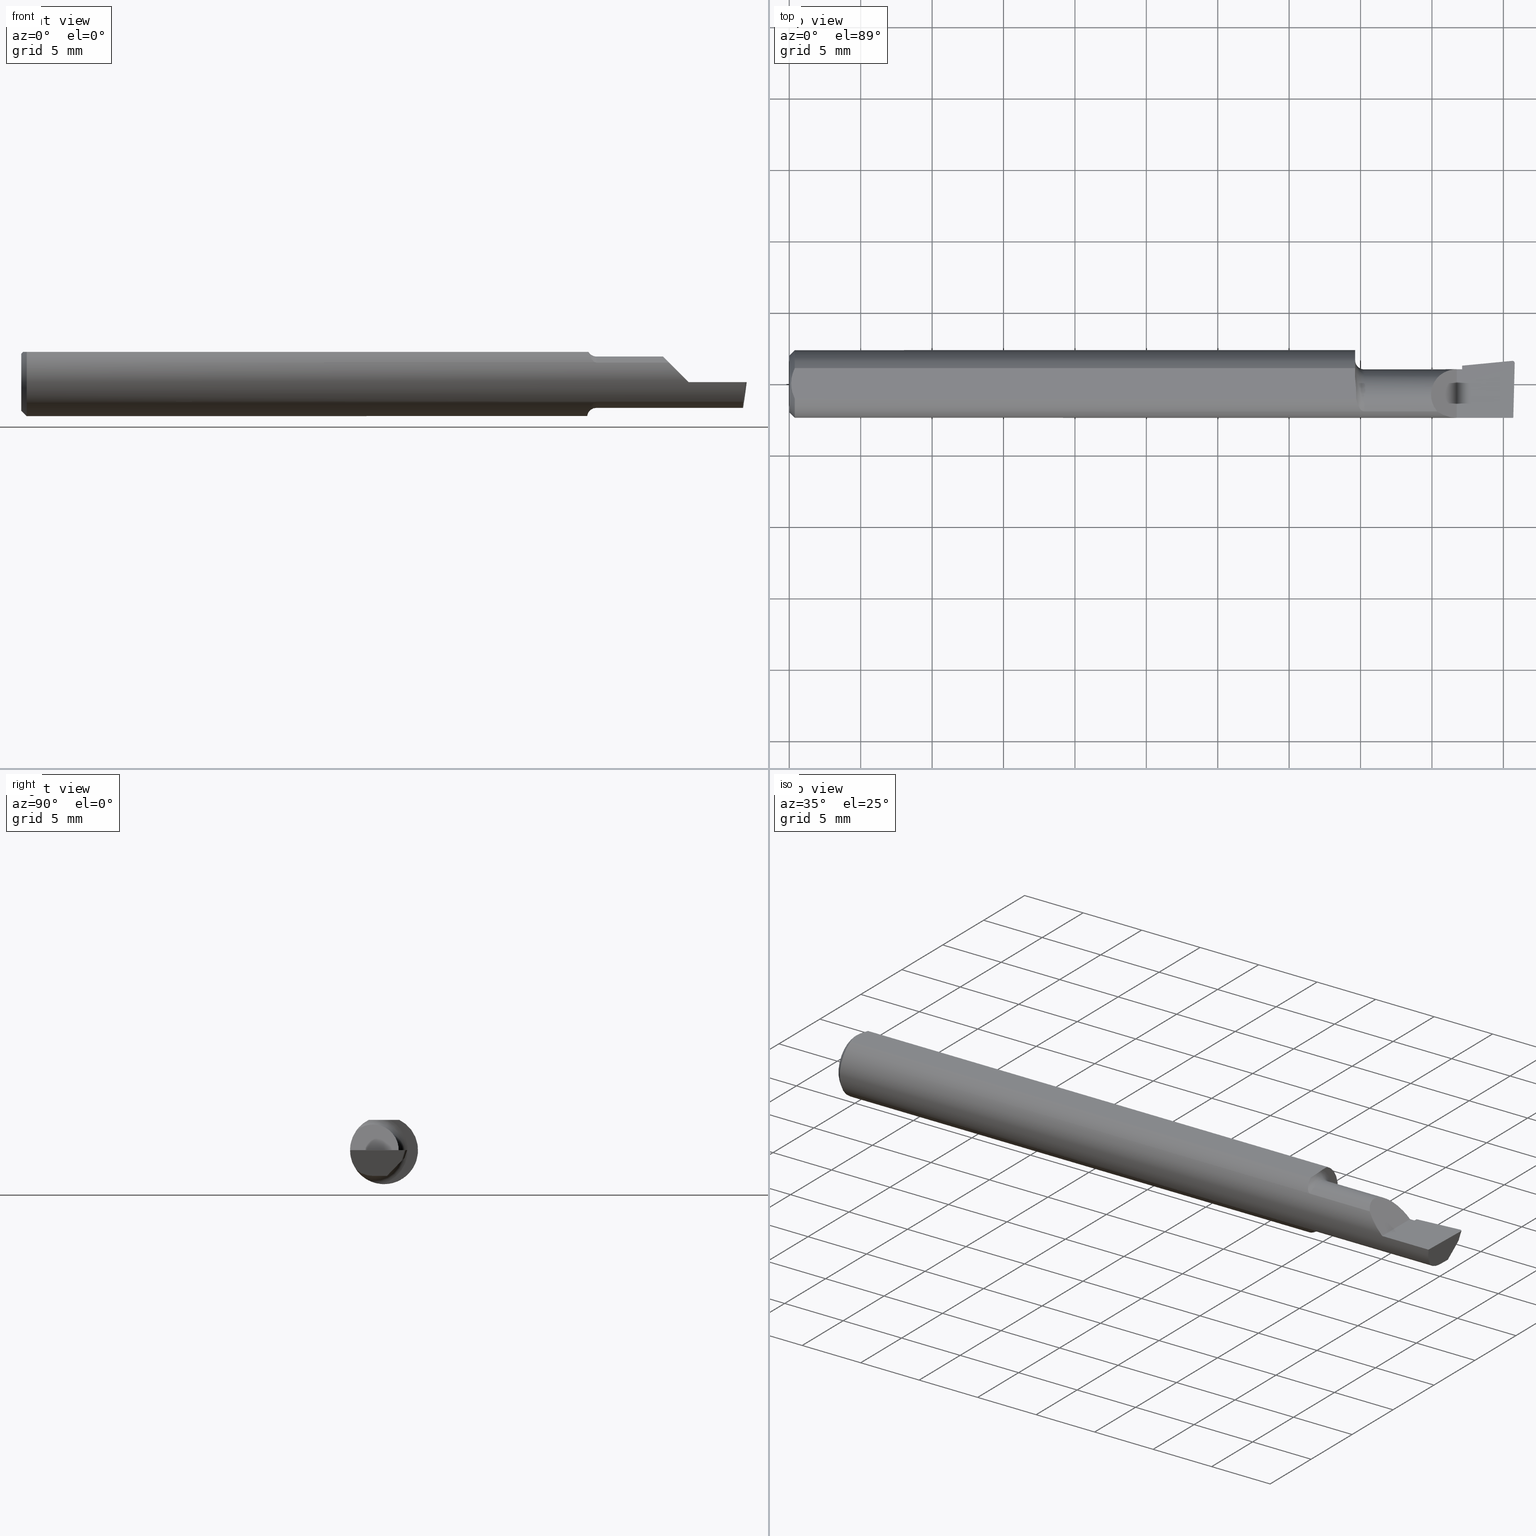
[diagram: canonical four-view strip — front | top / right | iso, engineering-drawing reading convention]
A machine part, canonical four-view strip (front | top / right | iso — engineering-drawing reading convention). The complete STEP part file that produces these views, byte-faithful:
ISO-10303-21;
HEADER;
FILE_DESCRIPTION (( 'STEP AP214' ),
    '1' );
FILE_NAME ('B160400R.STEP',
    '2020-05-08T22:44:17',
    ( '' ),
    ( '' ),
    'SwSTEP 2.0',
    'SolidWorks 2018',
    '' );
FILE_SCHEMA (( 'AUTOMOTIVE_DESIGN' ));
ENDSEC;

DATA;
#1 = DIRECTION ( 'NONE',  ( -4.268512490100411279E-18, 1.000000000000000000, 0.0000000000000000000 ) ) ;
#2 = CARTESIAN_POINT ( 'NONE',  ( 1.559999999999999831, -0.03049999999999999586, 0.0000000000000000000 ) ) ;
#3 =( GEOMETRIC_REPRESENTATION_CONTEXT ( 3 ) GLOBAL_UNCERTAINTY_ASSIGNED_CONTEXT ( ( #28 ) ) GLOBAL_UNIT_ASSIGNED_CONTEXT ( ( #263, #367, #441 ) ) REPRESENTATION_CONTEXT ( 'NONE', 'WORKASPACE' ) );
#4 = CARTESIAN_POINT ( 'NONE',  ( 1.993512870449312580, 0.06374616680637201771, -8.537024980200822558E-17 ) ) ;
#5 = ORIENTED_EDGE ( 'NONE', *, *, #438, .T. ) ;
#6 = CARTESIAN_POINT ( 'NONE',  ( 1.854999999999999982, -0.03049999999999999586, 0.0000000000000000000 ) ) ;
#7 = ORIENTED_EDGE ( 'NONE', *, *, #620, .T. ) ;
#8 = CARTESIAN_POINT ( 'NONE',  ( 1.990282674007078922, 0.05732143363315345130, -0.01999999999999999695 ) ) ;
#9 = EDGE_CURVE ( 'NONE', #21, #139, #243, .T. ) ;
#10 = CARTESIAN_POINT ( 'NONE',  ( 1.991772787678610435, -0.2497845628634191573, -6.377686106282116365E-17 ) ) ;
#11 = DIRECTION ( 'NONE',  ( 0.0000000000000000000, 0.0000000000000000000, -1.000000000000000000 ) ) ;
#12 = VERTEX_POINT ( 'NONE', #555 ) ;
#13 = LINE ( 'NONE', #404, #408 ) ;
#14 = DIRECTION ( 'NONE',  ( 0.0000000000000000000, -0.6963153109074925462, -0.7177360153954946975 ) ) ;
#15 = ORIENTED_EDGE ( 'NONE', *, *, #602, .T. ) ;
#16 = CARTESIAN_POINT ( 'NONE',  ( 1.854999999999999982, 0.05043808801135670622, 0.0000000000000000000 ) ) ;
#17 = ORIENTED_EDGE ( 'NONE', *, *, #451, .T. ) ;
#18 = PLANE ( 'NONE',  #148 ) ;
#19 = AXIS2_PLACEMENT_3D ( 'NONE', #16, #59, #600 ) ;
#20 = VECTOR ( 'NONE', #141, 39.37007874015748854 ) ;
#21 = VERTEX_POINT ( 'NONE', #395 ) ;
#22 =( GEOMETRIC_REPRESENTATION_CONTEXT ( 3 ) GLOBAL_UNCERTAINTY_ASSIGNED_CONTEXT ( ( #567 ) ) GLOBAL_UNIT_ASSIGNED_CONTEXT ( ( #307, #279, #627 ) ) REPRESENTATION_CONTEXT ( 'NONE', 'WORKASPACE' ) );
#23 = CARTESIAN_POINT ( 'NONE',  ( 1.988806546520622609, -0.03049999999999999586, -0.07090000000000000469 ) ) ;
#24 = VERTEX_POINT ( 'NONE', #108 ) ;
#25 = CARTESIAN_POINT ( 'NONE',  ( 1.572379481194433160, -0.06851133057105314450, -0.06386523205972809147 ) ) ;
#26 = DIRECTION ( 'NONE',  ( 0.0000000000000000000, 0.0000000000000000000, 1.000000000000000000 ) ) ;
#27 = CARTESIAN_POINT ( 'NONE',  ( 1.584999999999999964, -0.07646557377049212345, 0.05398125626501703439 ) ) ;
#28 = UNCERTAINTY_MEASURE_WITH_UNIT (LENGTH_MEASURE( 1.000000000000000082E-05 ), #263, 'distance_accuracy_value', 'NONE');
#29 = ORIENTED_EDGE ( 'NONE', *, *, #51, .F. ) ;
#30 = CARTESIAN_POINT ( 'NONE',  ( 1.993512870449312580, 0.06374616680637201771, -8.537024980200822558E-17 ) ) ;
#31 = DIRECTION ( 'NONE',  ( -1.000000000000000000, -0.0000000000000000000, -0.0000000000000000000 ) ) ;
#32 = CIRCLE ( 'NONE', #240, 0.07089999999999997693 ) ;
#33 = CARTESIAN_POINT ( 'NONE',  ( 1.993512870449312580, 0.06374616680637201771, -8.537024980200822558E-17 ) ) ;
#34 = ORIENTED_EDGE ( 'NONE', *, *, #51, .T. ) ;
#35 = CARTESIAN_POINT ( 'NONE',  ( 0.005000000000000223883, 0.007308422719211823959, 0.08360000000000000764 ) ) ;
#36 = CARTESIAN_POINT ( 'NONE',  ( 1.854999999999999982, 0.02466814268713802757, -0.04023083677511909290 ) ) ;
#37 = CARTESIAN_POINT ( 'NONE',  ( 1.577475890146723403, -0.07388913376859282400, 0.05747801488572825551 ) ) ;
#38 = AXIS2_PLACEMENT_3D ( 'NONE', #537, #522, #525 ) ;
#39 = EDGE_CURVE ( 'NONE', #270, #443, #99, .T. ) ;
#40 = VERTEX_POINT ( 'NONE', #129 ) ;
#41 = FACE_OUTER_BOUND ( 'NONE', #607, .T. ) ;
#42 = DIRECTION ( 'NONE',  ( 0.1219104985252570661, 0.0000000000000000000, 0.9925410975618708109 ) ) ;
#43 = ORIENTED_EDGE ( 'NONE', *, *, #260, .T. ) ;
#44 = CARTESIAN_POINT ( 'NONE',  ( 1.559999999999993392, -0.01550498344099977138, -0.09260523827686174825 ) ) ;
#45 = ORIENTED_EDGE ( 'NONE', *, *, #451, .F. ) ;
#46 = CARTESIAN_POINT ( 'NONE',  ( 1.988806546520622609, -0.03049999999999999586, -0.07090000000000000469 ) ) ;
#47 = AXIS2_PLACEMENT_3D ( 'NONE', #450, #187, #179 ) ;
#48 = CARTESIAN_POINT ( 'NONE',  ( 1.769987205483423143, 0.04039999999999997066, 0.07001279451657603514 ) ) ;
#49 = EDGE_LOOP ( 'NONE', ( #446, #45, #364, #552, #164, #447 ) ) ;
#50 = EDGE_LOOP ( 'NONE', ( #597, #629, #497, #440, #604, #136 ) ) ;
#51 = EDGE_CURVE ( 'NONE', #611, #333, #162, .T. ) ;
#52 = DIRECTION ( 'NONE',  ( -0.9922060308645512805, 0.02598182930468072652, 0.1218693434051217050 ) ) ;
#53 = CARTESIAN_POINT ( 'NONE',  ( 1.568064680686318324, -0.06127374973417914344, -0.07108395546218125582 ) ) ;
#54 = CARTESIAN_POINT ( 'NONE',  ( 1.989680968235101988, -0.07646557377049188753, -0.05398125626501726337 ) ) ;
#55 = ORIENTED_EDGE ( 'NONE', *, *, #561, .F. ) ;
#56 = DIRECTION ( 'NONE',  ( -1.000000000000000000, -0.0000000000000000000, -0.0000000000000000000 ) ) ;
#57 = VECTOR ( 'NONE', #668, 39.37007874015748143 ) ;
#58 = EDGE_CURVE ( 'NONE', #531, #482, #636, .T. ) ;
#59 = DIRECTION ( 'NONE',  ( -1.000000000000000000, -4.268512490100411279E-18, 0.0000000000000000000 ) ) ;
#60 = ORIENTED_EDGE ( 'NONE', *, *, #58, .T. ) ;
#61 = CARTESIAN_POINT ( 'NONE',  ( 1.992906680581891354, 0.06371699102466910070, -6.439972649628823803E-17 ) ) ;
#62 = PRESENTATION_STYLE_ASSIGNMENT (( #498 ) ) ;
#63 = PLANE ( 'NONE',  #295 ) ;
#64 = PRESENTATION_LAYER_ASSIGNMENT (  '', '', ( #168 ) ) ;
#65 = LENGTH_MEASURE_WITH_UNIT ( LENGTH_MEASURE( 0.02539999999999999897 ), #378 );
#66 = VERTEX_POINT ( 'NONE', #613 ) ;
#67 = CARTESIAN_POINT ( 'NONE',  ( 0.0000000000000000000, 0.0000000000000000000, 0.0000000000000000000 ) ) ;
#68 = CARTESIAN_POINT ( 'NONE',  ( 1.574015914171515096, -0.07074360550885062937, -0.06136535069389129071 ) ) ;
#69 = PRODUCT ( 'B160400R', 'B160400R', '', ( #114 ) ) ;
#70 = AXIS2_PLACEMENT_3D ( 'NONE', #641, #566, #323 ) ;
#71 = FACE_OUTER_BOUND ( 'NONE', #50, .T. ) ;
#72 = CARTESIAN_POINT ( 'NONE',  ( 1.854999999999999982, -0.03049999999999999586, 0.0000000000000000000 ) ) ;
#73 = COLOUR_RGB ( '',0.7529411764705882248, 0.7529411764705882248, 0.7529411764705882248 ) ;
#74 = ORIENTED_EDGE ( 'NONE', *, *, #200, .T. ) ;
#75 = DIRECTION ( 'NONE',  ( -1.000000000000000000, -4.268512490100411279E-18, 0.0000000000000000000 ) ) ;
#76 = FILL_AREA_STYLE ('',( #166 ) ) ;
#77 = DIRECTION ( 'NONE',  ( 0.0000000000000000000, 0.0000000000000000000, -1.000000000000000000 ) ) ;
#78 = AXIS2_PLACEMENT_3D ( 'NONE', #211, #476, #1 ) ;
#79 = LINE ( 'NONE', #363, #562 ) ;
#80 = LENGTH_MEASURE_WITH_UNIT ( LENGTH_MEASURE( 0.02539999999999999897 ), #659 );
#81 = VECTOR ( 'NONE', #504, 39.37007874015748854 ) ;
#82 = CARTESIAN_POINT ( 'NONE',  ( 1.564271705382763500, -0.04994636227297237496, 0.07964666709476365958 ) ) ;
#83 = CARTESIAN_POINT ( 'NONE',  ( 1.786018743734982150, -0.07646557377049197080, 0.05398125626501716623 ) ) ;
#84 = ORIENTED_EDGE ( 'NONE', *, *, #311, .T. ) ;
#85 = CARTESIAN_POINT ( 'NONE',  ( 0.01499999999999999598, 0.0000000000000000000, -0.09360000000000001652 ) ) ;
#86 = CARTESIAN_POINT ( 'NONE',  ( 1.559999999999999831, 0.006771783253975776143, 0.08360000000000003539 ) ) ;
#87 = MECHANICAL_DESIGN_GEOMETRIC_PRESENTATION_REPRESENTATION (  '', ( #168 ), #22 ) ;
#88 = CARTESIAN_POINT ( 'NONE',  ( 1.786018743734982150, -0.07646557377049197080, 0.05398125626501716623 ) ) ;
#89 = DIRECTION ( 'NONE',  ( -1.000000000000000000, -4.268512490100411279E-18, -0.0000000000000000000 ) ) ;
#90 = CARTESIAN_POINT ( 'NONE',  ( 1.801938678439108932, -0.08770433171880964718, 0.03806132156089073182 ) ) ;
#91 = EDGE_LOOP ( 'NONE', ( #213, #520, #92, #301 ) ) ;
#92 = ORIENTED_EDGE ( 'NONE', *, *, #200, .F. ) ;
#93 = CARTESIAN_POINT ( 'NONE',  ( 1.854999999999999982, -0.03049999999999999586, -0.07090000000000000469 ) ) ;
#94 = AXIS2_PLACEMENT_3D ( 'NONE', #2, #352, #268 ) ;
#95 = EDGE_CURVE ( 'NONE', #482, #639, #236, .T. ) ;
#96 = SURFACE_SIDE_STYLE ('',( #640 ) ) ;
#97 = FACE_OUTER_BOUND ( 'NONE', #469, .T. ) ;
#98 = EDGE_CURVE ( 'NONE', #139, #21, #508, .T. ) ;
#99 =( BOUNDED_CURVE ( )  B_SPLINE_CURVE ( 3, ( #4, #288, #647, #294 ),
 .UNSPECIFIED., .F., .F. ) 
 B_SPLINE_CURVE_WITH_KNOTS ( ( 4, 4 ),
 ( 3.511516179717668606, 3.604018710826184524 ),
 .UNSPECIFIED. ) 
 CURVE ( )  GEOMETRIC_REPRESENTATION_ITEM ( )  RATIONAL_B_SPLINE_CURVE ( ( 1.000000000000000000, 0.9992870672494020834, 0.9992870672494020834, 1.000000000000000000 ) ) 
 REPRESENTATION_ITEM ( '' )  );
#100 = DIRECTION ( 'NONE',  ( 2.972230601656782806E-18, -0.6963153109074925462, -0.7177360153954946975 ) ) ;
#101 = DIRECTION ( 'NONE',  ( -1.000000000000000000, -0.0000000000000000000, -0.0000000000000000000 ) ) ;
#102 = ORIENTED_EDGE ( 'NONE', *, *, #660, .T. ) ;
#103 = VERTEX_POINT ( 'NONE', #420 ) ;
#104 = CIRCLE ( 'NONE', #94, 0.09589999999999999913 ) ;
#105 = CIRCLE ( 'NONE', #473, 0.09360000000000001652 ) ;
#106 = VECTOR ( 'NONE', #579, 39.37007874015748143 ) ;
#107 = EDGE_CURVE ( 'NONE', #435, #40, #649, .T. ) ;
#108 = CARTESIAN_POINT ( 'NONE',  ( 1.854999999999999982, -0.03049999999999999586, -0.07090000000000000469 ) ) ;
#109 = DIRECTION ( 'NONE',  ( 0.0000000000000000000, -1.000000000000000000, 0.0000000000000000000 ) ) ;
#110 = CARTESIAN_POINT ( 'NONE',  ( 0.009492654797564337166, 0.02859466010166625619, 0.08359999999999997988 ) ) ;
#111 = LINE ( 'NONE', #486, #340 ) ;
#112 = CARTESIAN_POINT ( 'NONE',  ( 1.982891729545288362, 0.03166783622807470971, -0.07897382033917342559 ) ) ;
#113 = PLANE ( 'NONE',  #400 ) ;
#114 = PRODUCT_CONTEXT ( 'NONE', #656, 'mechanical' ) ;
#115 =( BOUNDED_CURVE ( )  B_SPLINE_CURVE ( 3, ( #123, #456, #313, #33 ),
 .UNSPECIFIED., .F., .F. ) 
 B_SPLINE_CURVE_WITH_KNOTS ( ( 4, 4 ),
 ( 1.953092279228392680, 3.511516179717668606 ),
 .UNSPECIFIED. ) 
 CURVE ( )  GEOMETRIC_REPRESENTATION_ITEM ( )  RATIONAL_B_SPLINE_CURVE ( ( 1.000000000000000000, 0.8076450242550367031, 0.8076450242550367031, 1.000000000000000000 ) ) 
 REPRESENTATION_ITEM ( '' )  );
#116 = ORIENTED_EDGE ( 'NONE', *, *, #326, .T. ) ;
#117 = CARTESIAN_POINT ( 'NONE',  ( 1.987153287650115008, -0.009717623157789102850, -0.08879077981908641004 ) ) ;
#118 = DIRECTION ( 'NONE',  ( -0.0000000000000000000, 0.0000000000000000000, 1.000000000000000000 ) ) ;
#119 = CYLINDRICAL_SURFACE ( 'NONE', #198, 0.006500000000000000569 ) ;
#120 = VECTOR ( 'NONE', #401, 39.37007874015748854 ) ;
#121 = VERTEX_POINT ( 'NONE', #83 ) ;
#122 = CARTESIAN_POINT ( 'NONE',  ( 1.990484603334409242, 0.05734087721588529418, -0.01999999999999994491 ) ) ;
#123 = CARTESIAN_POINT ( 'NONE',  ( 1.999806390372778075, 0.05700634663142072761, -6.825504076481286703E-17 ) ) ;
#124 = DIRECTION ( 'NONE',  ( -1.000000000000000000, 0.0000000000000000000, 5.493159289247764363E-16 ) ) ;
#125 = FILL_AREA_STYLE ('',( #135 ) ) ;
#126 = LINE ( 'NONE', #117, #20 ) ;
#127 = CARTESIAN_POINT ( 'NONE',  ( 5.659797890829555466E-31, -0.09359999999999998876, 1.030335658007946046E-15 ) ) ;
#128 = VECTOR ( 'NONE', #321, 39.37007874015748854 ) ;
#129 = CARTESIAN_POINT ( 'NONE',  ( 1.854999999999999982, 0.04040000000000000535, 1.030335658007946440E-15 ) ) ;
#130 = ORIENTED_EDGE ( 'NONE', *, *, #532, .F. ) ;
#131 = AXIS2_PLACEMENT_3D ( 'NONE', #144, #101, #197 ) ;
#132 = CARTESIAN_POINT ( 'NONE',  ( 1.990883086864198681, 0.05733652896197527493, -0.02004403198038578332 ) ) ;
#133 = CARTESIAN_POINT ( 'NONE',  ( 1.982891729545288362, 0.03785899225921191685, -0.08095361502502176898 ) ) ;
#134 = CARTESIAN_POINT ( 'NONE',  ( 1.576159648777483158, -0.07275446879445285342, 0.05891786234966334829 ) ) ;
#135 = FILL_AREA_STYLE_COLOUR ( '', #73 ) ;
#136 = ORIENTED_EDGE ( 'NONE', *, *, #421, .F. ) ;
#137 = CARTESIAN_POINT ( 'NONE',  ( 0.01499999999999999598, 0.0000000000000000000, 0.0000000000000000000 ) ) ;
#138 = CONICAL_SURFACE ( 'NONE', #142, 0.09360000000000001652, 0.7853981633974601584 ) ;
#139 = VERTEX_POINT ( 'NONE', #570 ) ;
#140 = DIRECTION ( 'NONE',  ( 0.0000000000000000000, -1.189000693621284344E-16, -1.000000000000000000 ) ) ;
#141 = DIRECTION ( 'NONE',  ( -0.1053106618241542169, -0.6976485211320176960, -0.7086580314005247461 ) ) ;
#142 = AXIS2_PLACEMENT_3D ( 'NONE', #478, #623, #77 ) ;
#143 = APPLICATION_PROTOCOL_DEFINITION ( 'draft international standard', 'automotive_design', 1998, #656 ) ;
#144 = CARTESIAN_POINT ( 'NONE',  ( 0.0000000000000000000, 0.0000000000000000000, 0.0000000000000000000 ) ) ;
#145 = CARTESIAN_POINT ( 'NONE',  ( 1.434596552969581884, 0.003814945941878333715, -0.01999999999999999695 ) ) ;
#146 = ORIENTED_EDGE ( 'NONE', *, *, #385, .T. ) ;
#147 =( BOUNDED_CURVE ( )  B_SPLINE_CURVE ( 3, ( #244, #544, #48, #216 ),
 .UNSPECIFIED., .F., .T. ) 
 B_SPLINE_CURVE_WITH_KNOTS ( ( 4, 4 ),
 ( 5.577815324852163137, 7.853981633974482790 ),
 .UNSPECIFIED. ) 
 CURVE ( )  GEOMETRIC_REPRESENTATION_ITEM ( )  RATIONAL_B_SPLINE_CURVE ( ( 1.000000000000000000, 0.6128902971210721251, 0.6128902971210721251, 1.000000000000000000 ) ) 
 REPRESENTATION_ITEM ( '' )  );
#148 = AXIS2_PLACEMENT_3D ( 'NONE', #375, #464, #635 ) ;
#149 = ORIENTED_EDGE ( 'NONE', *, *, #9, .F. ) ;
#150 = CARTESIAN_POINT ( 'NONE',  ( -3.026375355475530641E-19, 0.04039999999999996372, 1.030335658007946046E-15 ) ) ;
#151 = DIRECTION ( 'NONE',  ( 1.000000000000000000, 4.268512490100411279E-18, 0.0000000000000000000 ) ) ;
#152 = ORIENTED_EDGE ( 'NONE', *, *, #345, .F. ) ;
#153 = CARTESIAN_POINT ( 'NONE',  ( 1.563100172961548795, -0.02248939038937002033, 0.08360000000000000764 ) ) ;
#154 = EDGE_CURVE ( 'NONE', #177, #121, #374, .T. ) ;
#155 = ORIENTED_EDGE ( 'NONE', *, *, #573, .F. ) ;
#156 = VERTEX_POINT ( 'NONE', #46 ) ;
#157 = CARTESIAN_POINT ( 'NONE',  ( 1.820512722067858524, -0.09360000000000001652, 0.01948727793214129894 ) ) ;
#158 = CARTESIAN_POINT ( 'NONE',  ( 1.840000000000000080, -0.09360000000000005815, 1.959434878635762025E-17 ) ) ;
#159 = ORIENTED_EDGE ( 'NONE', *, *, #513, .F. ) ;
#160 = DIRECTION ( 'NONE',  ( 1.000000000000000000, 4.268512490100411279E-18, 0.0000000000000000000 ) ) ;
#161 = CARTESIAN_POINT ( 'NONE',  ( 1.989811960493453435, 0.007895210578134201698, -0.07090000000000000469 ) ) ;
#162 = LINE ( 'NONE', #231, #373 ) ;
#163 = AXIS2_PLACEMENT_3D ( 'NONE', #325, #302, #533 ) ;
#164 = ORIENTED_EDGE ( 'NONE', *, *, #418, .F. ) ;
#165 = EDGE_CURVE ( 'NONE', #66, #485, #126, .T. ) ;
#166 = FILL_AREA_STYLE_COLOUR ( '', #315 ) ;
#167 = VERTEX_POINT ( 'NONE', #278 ) ;
#168 = STYLED_ITEM ( 'NONE', ( #554 ), #258 ) ;
#169 = CARTESIAN_POINT ( 'NONE',  ( 1.584999999999999964, -0.07646557377049212345, 0.05398125626501703439 ) ) ;
#170 = CARTESIAN_POINT ( 'NONE',  ( 2.000000000000000000, -0.03049999999999999586, -0.07090000000000000469 ) ) ;
#171 = ORIENTED_EDGE ( 'NONE', *, *, #430, .T. ) ;
#172 = VECTOR ( 'NONE', #100, 39.37007874015748854 ) ;
#173 = CARTESIAN_POINT ( 'NONE',  ( 0.0000000000000000000, 0.0000000000000000000, 0.0000000000000000000 ) ) ;
#174 = DIRECTION ( 'NONE',  ( 0.06894566448119622548, -0.7160281025913034503, 0.6946583704589934793 ) ) ;
#175 = EDGE_CURVE ( 'NONE', #270, #496, #444, .T. ) ;
#176 = DIRECTION ( 'NONE',  ( 0.0000000000000000000, 0.9524855432518779530, -0.3045837978228238541 ) ) ;
#177 = VERTEX_POINT ( 'NONE', #591 ) ;
#178 = VECTOR ( 'NONE', #568, 39.37007874015748854 ) ;
#179 = DIRECTION ( 'NONE',  ( 0.0000000000000000000, -1.000000000000000000, 0.0000000000000000000 ) ) ;
#180 =( NAMED_UNIT ( * ) PLANE_ANGLE_UNIT ( ) SI_UNIT ( $, .RADIAN. ) );
#181 = AXIS2_PLACEMENT_3D ( 'NONE', #232, #140, #234 ) ;
#182 = CARTESIAN_POINT ( 'NONE',  ( 1.854999999999999982, 0.04694360585384964313, -0.01137731495658560361 ) ) ;
#183 = CIRCLE ( 'NONE', #47, 0.07089999999999996305 ) ;
#184 = VECTOR ( 'NONE', #160, 39.37007874015748143 ) ;
#185 = AXIS2_PLACEMENT_3D ( 'NONE', #246, #546, #558 ) ;
#186 = CARTESIAN_POINT ( 'NONE',  ( 1.562745430550909864, -0.01759363372028110648, 0.08360000000000003539 ) ) ;
#187 = DIRECTION ( 'NONE',  ( -1.000000000000000000, -4.268512490100411279E-18, -0.0000000000000000000 ) ) ;
#188 = ORIENTED_EDGE ( 'NONE', *, *, #505, .T. ) ;
#189 = CARTESIAN_POINT ( 'NONE',  ( 0.01499999999999999944, -0.04209513035969835587, 0.08360000000000000764 ) ) ;
#190 = VERTEX_POINT ( 'NONE', #189 ) ;
#191 = CARTESIAN_POINT ( 'NONE',  ( 0.0000000000000000000, -0.03050000000000000627, 0.0000000000000000000 ) ) ;
#192 = ORIENTED_EDGE ( 'NONE', *, *, #369, .T. ) ;
#193 = PLANE ( 'NONE',  #252 ) ;
#194 = EDGE_CURVE ( 'NONE', #167, #443, #515, .T. ) ;
#195 = FACE_OUTER_BOUND ( 'NONE', #499, .T. ) ;
#196 = CARTESIAN_POINT ( 'NONE',  ( 1.996607907276938487, 0.05291612433050036507, -0.02516861643763559919 ) ) ;
#197 = DIRECTION ( 'NONE',  ( 0.0000000000000000000, 0.0000000000000000000, 1.000000000000000000 ) ) ;
#198 = AXIS2_PLACEMENT_3D ( 'NONE', #112, #355, #176 ) ;
#199 = LINE ( 'NONE', #145, #582 ) ;
#200 = EDGE_CURVE ( 'NONE', #611, #472, #199, .T. ) ;
#201 = ORIENTED_EDGE ( 'NONE', *, *, #214, .F. ) ;
#202 = B_SPLINE_CURVE_WITH_KNOTS ( 'NONE', 3,
 ( #273, #417, #310, #534, #461, #68, #25, #53, #257, #290, #564, #439, #44, #616 ),
 .UNSPECIFIED., .F., .F.,
 ( 4, 2, 2, 2, 2, 2, 4 ),
 ( 1.959158530842610525E-07, 0.0001424059935984809603, 0.0002846160713438776512, 0.0005690362268346715749, 0.001137876537816250857, 0.001706716848797830031, 0.002275557159779408988 ),
 .UNSPECIFIED. ) ;
#203 = DIRECTION ( 'NONE',  ( 0.9953961983671800740, 0.09584575252021028391, 0.0000000000000000000 ) ) ;
#204 = ORIENTED_EDGE ( 'NONE', *, *, #98, .T. ) ;
#205 = CARTESIAN_POINT ( 'NONE',  ( 1.559999999999999831, 0.1436000000000000332, 0.08359999999999999376 ) ) ;
#206 = DIRECTION ( 'NONE',  ( 1.000000000000000000, 0.0000000000000000000, 0.0000000000000000000 ) ) ;
#207 = CARTESIAN_POINT ( 'NONE',  ( 0.01499999999999999598, 0.04209513035969837669, 0.08360000000000000764 ) ) ;
#208 = ORIENTED_EDGE ( 'NONE', *, *, #194, .F. ) ;
#209 = ORIENTED_EDGE ( 'NONE', *, *, #154, .T. ) ;
#210 = EDGE_LOOP ( 'NONE', ( #431, #116, #524, #209, #327, #201, #380, #429, #224, #595, #495, #410 ) ) ;
#211 = CARTESIAN_POINT ( 'NONE',  ( 1.559999999999999831, 0.06539999999999997204, 0.0000000000000000000 ) ) ;
#212 = DIRECTION ( 'NONE',  ( -1.000000000000000000, -4.268512490100411279E-18, 0.0000000000000000000 ) ) ;
#213 = ORIENTED_EDGE ( 'NONE', *, *, #194, .T. ) ;
#214 = EDGE_CURVE ( 'NONE', #365, #614, #625, .T. ) ;
#215 = CARTESIAN_POINT ( 'NONE',  ( 1.854999999999999982, 0.05043808801135670622, 0.0000000000000000000 ) ) ;
#216 = CARTESIAN_POINT ( 'NONE',  ( 1.840000000000000080, 0.04039999999999989433, 1.959434878635762025E-17 ) ) ;
#217 = LINE ( 'NONE', #433, #453 ) ;
#218 = CARTESIAN_POINT ( 'NONE',  ( 1.989680968235101988, -0.07646557377049188753, -0.05398125626501726337 ) ) ;
#219 = ORIENTED_EDGE ( 'NONE', *, *, #336, .T. ) ;
#220 = CARTESIAN_POINT ( 'NONE',  ( 1.559999999999999831, -0.008104918032786992757, -0.09324843325054746335 ) ) ;
#221 = CARTESIAN_POINT ( 'NONE',  ( 1.990282674007078922, 0.05732143363315345130, -0.01999999999999999695 ) ) ;
#222 = AXIS2_PLACEMENT_3D ( 'NONE', #259, #174, #14 ) ;
#223 = CARTESIAN_POINT ( 'NONE',  ( 1.563150981066091738, -0.03719006435924352566, 0.08360000000000000764 ) ) ;
#224 = ORIENTED_EDGE ( 'NONE', *, *, #95, .F. ) ;
#225 = LINE ( 'NONE', #170, #254 ) ;
#226 = LINE ( 'NONE', #391, #383 ) ;
#227 = CARTESIAN_POINT ( 'NONE',  ( 1.562801882726447822, -0.04209513036031865135, 0.08360000000000000764 ) ) ;
#228 = DIRECTION ( 'NONE',  ( 1.000000000000000000, 0.0000000000000000000, 0.0000000000000000000 ) ) ;
#229 = EDGE_CURVE ( 'NONE', #443, #472, #480, .T. ) ;
#230 = CARTESIAN_POINT ( 'NONE',  ( 1.989680968235101988, -0.07646557377049188753, -0.05398125626501726337 ) ) ;
#231 = CARTESIAN_POINT ( 'NONE',  ( 1.854999999999999982, 0.02466814268713802757, -0.04023083677511909290 ) ) ;
#232 = CARTESIAN_POINT ( 'NONE',  ( 2.000000000000000000, 0.1436000000000000332, 0.08359999999999999376 ) ) ;
#233 = DIRECTION ( 'NONE',  ( -4.268512490100411279E-18, 1.000000000000000000, 2.344761903626518103E-33 ) ) ;
#234 = DIRECTION ( 'NONE',  ( 0.0000000000000000000, 1.000000000000000000, -1.189000693621284344E-16 ) ) ;
#235 = PLANE ( 'NONE',  #78 ) ;
#236 = CIRCLE ( 'NONE', #646, 0.09360000000000001652 ) ;
#237 = LENGTH_MEASURE_WITH_UNIT ( LENGTH_MEASURE( 0.02539999999999999897 ), #399 );
#238 = VERTEX_POINT ( 'NONE', #658 ) ;
#239 = CARTESIAN_POINT ( 'NONE',  ( 1.561342386211016953, -0.002910845068973703063, 0.08359999999999999376 ) ) ;
#240 = AXIS2_PLACEMENT_3D ( 'NONE', #6, #299, #109 ) ;
#241 = EDGE_CURVE ( 'NONE', #177, #435, #650, .T. ) ;
#242 = CARTESIAN_POINT ( 'NONE',  ( 0.01499999999999999598, 0.0000000000000000000, 0.0000000000000000000 ) ) ;
#243 = CIRCLE ( 'NONE', #185, 0.07859999999999965625 ) ;
#244 = CARTESIAN_POINT ( 'NONE',  ( 1.786018743734982150, -0.07646557377049197080, 0.05398125626501716623 ) ) ;
#245 = ORIENTED_EDGE ( 'NONE', *, *, #336, .F. ) ;
#246 = CARTESIAN_POINT ( 'NONE',  ( 0.0000000000000000000, 0.0000000000000000000, 0.0000000000000000000 ) ) ;
#247 = CARTESIAN_POINT ( 'NONE',  ( 1.584999999999999964, -0.07646557377049209570, -0.05398125626501706908 ) ) ;
#248 = EDGE_CURVE ( 'NONE', #365, #190, #226, .T. ) ;
#249 = FACE_OUTER_BOUND ( 'NONE', #434, .T. ) ;
#250 = ORIENTED_EDGE ( 'NONE', *, *, #458, .T. ) ;
#251 = PLANE ( 'NONE',  #38 ) ;
#252 = AXIS2_PLACEMENT_3D ( 'NONE', #344, #52, #42 ) ;
#253 = CARTESIAN_POINT ( 'NONE',  ( 1.995862624392067852, -0.09360000000000009979, -6.605666309584449409E-17 ) ) ;
#254 = VECTOR ( 'NONE', #466, 39.37007874015748143 ) ;
#255 = CYLINDRICAL_SURFACE ( 'NONE', #163, 0.006500000000000000569 ) ;
#256 = DIRECTION ( 'NONE',  ( 0.0000000000000000000, 0.0000000000000000000, 1.000000000000000000 ) ) ;
#257 = CARTESIAN_POINT ( 'NONE',  ( 1.566019021117886378, -0.05561872204144574505, -0.07562530238090230117 ) ) ;
#258 = MANIFOLD_SOLID_BREP ( '0A7B9152-0A08-4aca-91C7-A423BCB6DE30-GAAFaceID16', #589 ) ;
#259 = CARTESIAN_POINT ( 'NONE',  ( 1.434596552969581884, 0.003814945941878333715, -0.01999999999999999695 ) ) ;
#260 = EDGE_CURVE ( 'NONE', #167, #611, #269, .T. ) ;
#261 = FACE_OUTER_BOUND ( 'NONE', #318, .T. ) ;
#262 = CARTESIAN_POINT ( 'NONE',  ( 1.988360720229885636, -0.04752541915734222189, -0.07089999999999997693 ) ) ;
#263 =( CONVERSION_BASED_UNIT ( 'INCH', #237 ) LENGTH_UNIT ( ) NAMED_UNIT ( #372 ) );
#264 = CARTESIAN_POINT ( 'NONE',  ( 1.559999999999999831, 0.01648776436477898677, 0.08360000000000000764 ) ) ;
#265 = PLANE ( 'NONE',  #368 ) ;
#266 = AXIS2_PLACEMENT_3D ( 'NONE', #548, #493, #425 ) ;
#267 = EDGE_CURVE ( 'NONE', #639, #190, #105, .T. ) ;
#268 = DIRECTION ( 'NONE',  ( 0.0000000000000000000, -1.000000000000000000, 0.0000000000000000000 ) ) ;
#269 = LINE ( 'NONE', #182, #354 ) ;
#270 = VERTEX_POINT ( 'NONE', #30 ) ;
#271 = ORIENTED_EDGE ( 'NONE', *, *, #387, .T. ) ;
#272 = CARTESIAN_POINT ( 'NONE',  ( 1.993469067315748244, -0.09360000000000004428, -0.01948727793214142037 ) ) ;
#273 = CARTESIAN_POINT ( 'NONE',  ( 1.584999999999999964, -0.07646557377049209570, -0.05398125626501706908 ) ) ;
#274 = CARTESIAN_POINT ( 'NONE',  ( 1.854999999999999982, 0.02466814268713802757, -0.04023083677511909290 ) ) ;
#275 = AXIS2_PLACEMENT_3D ( 'NONE', #357, #118, #206 ) ;
#276 = CARTESIAN_POINT ( 'NONE',  ( 0.005000000000000236026, 1.025183009042025117E-17, 0.08360000000000000764 ) ) ;
#277 = ORIENTED_EDGE ( 'NONE', *, *, #9, .T. ) ;
#278 = CARTESIAN_POINT ( 'NONE',  ( 1.854999999999999982, 0.05043808801135921116, 1.030845766359249298E-15 ) ) ;
#279 =( NAMED_UNIT ( * ) PLANE_ANGLE_UNIT ( ) SI_UNIT ( $, .RADIAN. ) );
#280 = EDGE_LOOP ( 'NONE', ( #149, #250, #60, #287, #638 ) ) ;
#281 = CYLINDRICAL_SURFACE ( 'NONE', #601, 0.09360000000000001652 ) ;
#282 = ORIENTED_EDGE ( 'NONE', *, *, #241, .F. ) ;
#283 = FACE_OUTER_BOUND ( 'NONE', #280, .T. ) ;
#284 = LINE ( 'NONE', #406, #184 ) ;
#285 = DIRECTION ( 'NONE',  ( 4.268512490100412049E-18, -1.000000000000000000, 0.0000000000000000000 ) ) ;
#286 = DIRECTION ( 'NONE',  ( 0.0000000000000000000, -1.000000000000000000, 0.0000000000000000000 ) ) ;
#287 = ORIENTED_EDGE ( 'NONE', *, *, #95, .T. ) ;
#288 = CARTESIAN_POINT ( 'NONE',  ( 1.993310817358675324, 0.06374616680637204547, -6.832789351565723493E-17 ) ) ;
#289 = EDGE_CURVE ( 'NONE', #565, #238, #390, .T. ) ;
#290 = CARTESIAN_POINT ( 'NONE',  ( 1.562866246175463436, -0.04341922408232368885, -0.08323100132652178074 ) ) ;
#291 = CARTESIAN_POINT ( 'NONE',  ( 1.985368221927906740, 0.02181583460911406050, -0.1100467398478503361 ) ) ;
#292 = FACE_OUTER_BOUND ( 'NONE', #91, .T. ) ;
#293 = PRODUCT_DEFINITION_CONTEXT ( 'detailed design', #517, 'design' ) ;
#294 = CARTESIAN_POINT ( 'NONE',  ( 1.992906680581891354, 0.06371699102466910070, -6.439972649628823803E-17 ) ) ;
#295 = AXIS2_PLACEMENT_3D ( 'NONE', #415, #228, #11 ) ;
#296 = EDGE_CURVE ( 'NONE', #482, #238, #396, .T. ) ;
#297 = EDGE_LOOP ( 'NONE', ( #606, #585, #468 ) ) ;
#298 = FACE_OUTER_BOUND ( 'NONE', #337, .T. ) ;
#299 = DIRECTION ( 'NONE',  ( 1.000000000000000000, 4.268512490100411279E-18, 0.0000000000000000000 ) ) ;
#300 = DIRECTION ( 'NONE',  ( -1.000000000000000000, -4.268512490100411279E-18, -0.0000000000000000000 ) ) ;
#301 = ORIENTED_EDGE ( 'NONE', *, *, #260, .F. ) ;
#302 = DIRECTION ( 'NONE',  ( -0.1240019227989063999, -0.3022330132596636743, -0.9451342385281353842 ) ) ;
#303 = ORIENTED_EDGE ( 'NONE', *, *, #369, .F. ) ;
#304 = CARTESIAN_POINT ( 'NONE',  ( 1.990883086864198681, 0.05733652896197527493, -0.02004403198038578332 ) ) ;
#305 = PLANE ( 'NONE',  #181 ) ;
#306 = PRODUCT_RELATED_PRODUCT_CATEGORY ( 'part', '', ( #69 ) ) ;
#307 =( CONVERSION_BASED_UNIT ( 'INCH', #65 ) LENGTH_UNIT ( ) NAMED_UNIT ( #362 ) );
#308 = ORIENTED_EDGE ( 'NONE', *, *, #411, .T. ) ;
#309 = VERTEX_POINT ( 'NONE', #463 ) ;
#310 = CARTESIAN_POINT ( 'NONE',  ( 1.581350203328816484, -0.07594758393974103405, -0.05472071011664903645 ) ) ;
#311 = EDGE_CURVE ( 'NONE', #40, #333, #518, .T. ) ;
#312 = CARTESIAN_POINT ( 'NONE',  ( 0.005975039161239525769, -0.01453776427033148279, 0.08359999999999997988 ) ) ;
#313 = CARTESIAN_POINT ( 'NONE',  ( 1.997312560284822958, 0.06374616680637211485, -7.052611464845218011E-17 ) ) ;
#314 = CARTESIAN_POINT ( 'NONE',  ( 1.854999999999999982, -0.03049999999999999586, 0.0000000000000000000 ) ) ;
#315 = COLOUR_RGB ( '',0.7529411764705882248, 0.7529411764705882248, 0.7529411764705882248 ) ;
#316 = ORIENTED_EDGE ( 'NONE', *, *, #653, .F. ) ;
#317 = DIRECTION ( 'NONE',  ( 0.7071067811865391350, 0.0000000000000000000, -0.7071067811865558994 ) ) ;
#318 = EDGE_LOOP ( 'NONE', ( #74, #350, #219, #630, #155, #540, #349, #29 ) ) ;
#319 = AXIS2_PLACEMENT_3D ( 'NONE', #191, #608, #285 ) ;
#320 = ORIENTED_EDGE ( 'NONE', *, *, #665, .T. ) ;
#321 = DIRECTION ( 'NONE',  ( -0.02617694830786038498, -0.9996573249755575929, 0.0000000000000000000 ) ) ;
#322 = ORIENTED_EDGE ( 'NONE', *, *, #418, .T. ) ;
#323 = DIRECTION ( 'NONE',  ( 4.268512490100411279E-18, -1.000000000000000000, 0.0000000000000000000 ) ) ;
#324 = DIRECTION ( 'NONE',  ( 0.0000000000000000000, 0.0000000000000000000, 1.000000000000000000 ) ) ;
#325 = CARTESIAN_POINT ( 'NONE',  ( 1.982891729545288362, 0.03166783622807470971, -0.07897382033917342559 ) ) ;
#326 = EDGE_CURVE ( 'NONE', #423, #103, #521, .T. ) ;
#327 = ORIENTED_EDGE ( 'NONE', *, *, #385, .F. ) ;
#328 = CARTESIAN_POINT ( 'NONE',  ( 1.840000000000000080, 0.04039999999999989433, 1.959434878635762025E-17 ) ) ;
#329 = FACE_OUTER_BOUND ( 'NONE', #519, .T. ) ;
#330 = CARTESIAN_POINT ( 'NONE',  ( 0.009539353699420832430, -0.02875682547511371895, 0.08360000000000000764 ) ) ;
#331 = CARTESIAN_POINT ( 'NONE',  ( 1.988814216640107491, -0.03020708995424807933, -0.07090000000000000469 ) ) ;
#332 = PLANE ( 'NONE',  #511 ) ;
#333 = VERTEX_POINT ( 'NONE', #436 ) ;
#334 = FACE_OUTER_BOUND ( 'NONE', #551, .T. ) ;
#335 = AXIS2_PLACEMENT_3D ( 'NONE', #72, #89, #571 ) ;
#336 = EDGE_CURVE ( 'NONE', #496, #66, #342, .T. ) ;
#337 = EDGE_LOOP ( 'NONE', ( #491, #661, #188, #509, #322 ) ) ;
#338 = EDGE_LOOP ( 'NONE', ( #102, #599, #271, #588, #477 ) ) ;
#339 = CARTESIAN_POINT ( 'NONE',  ( 1.580716106491990125, -0.07573797007891092115, 0.05501896193679952501 ) ) ;
#340 = VECTOR ( 'NONE', #592, 39.37007874015748143 ) ;
#341 =( CONVERSION_BASED_UNIT ( 'INCH', #80 ) LENGTH_UNIT ( ) NAMED_UNIT ( #358 ) );
#342 =( BOUNDED_CURVE ( )  B_SPLINE_CURVE ( 3, ( #304, #506, #196, #666 ),
 .UNSPECIFIED., .F., .F. ) 
 B_SPLINE_CURVE_WITH_KNOTS ( ( 4, 4 ),
 ( 3.156599629463139323, 4.715023529952376613 ),
 .UNSPECIFIED. ) 
 CURVE ( )  GEOMETRIC_REPRESENTATION_ITEM ( )  RATIONAL_B_SPLINE_CURVE ( ( 1.000000000000000000, 0.8076450242550459180, 0.8076450242550459180, 1.000000000000000000 ) ) 
 REPRESENTATION_ITEM ( '' )  );
#343 = DIRECTION ( 'NONE',  ( 2.972230601656782806E-18, -0.6963153109074925462, -0.7177360153954946975 ) ) ;
#344 = CARTESIAN_POINT ( 'NONE',  ( 1.986456763647800550, -0.06267397991240475363, -0.08317158399080336328 ) ) ;
#345 = EDGE_CURVE ( 'NONE', #66, #309, #617, .T. ) ;
#346 = VECTOR ( 'NONE', #151, 39.37007874015748143 ) ;
#347 = PRODUCT_DEFINITION_SHAPE ( 'NONE', 'NONE',  #631 ) ;
#348 = ORIENTED_EDGE ( 'NONE', *, *, #175, .F. ) ;
#349 = ORIENTED_EDGE ( 'NONE', *, *, #665, .F. ) ;
#350 = ORIENTED_EDGE ( 'NONE', *, *, #532, .T. ) ;
#351 = CARTESIAN_POINT ( 'NONE',  ( 0.01499999999999999598, 0.04209513035969837669, 0.08360000000000000764 ) ) ;
#352 = DIRECTION ( 'NONE',  ( -1.000000000000000000, -4.268512490100411279E-18, -0.0000000000000000000 ) ) ;
#353 = MECHANICAL_DESIGN_GEOMETRIC_PRESENTATION_REPRESENTATION (  '', ( #662 ), #523 ) ;
#354 = VECTOR ( 'NONE', #382, 39.37007874015748854 ) ;
#355 = DIRECTION ( 'NONE',  ( -0.1240019227989063999, -0.3022330132596636743, -0.9451342385281353842 ) ) ;
#356 = ORIENTED_EDGE ( 'NONE', *, *, #430, .F. ) ;
#357 = CARTESIAN_POINT ( 'NONE',  ( 2.000000000000000000, -0.03049999999999999586, -0.07090000000000000469 ) ) ;
#358 = DIMENSIONAL_EXPONENTS ( 1.000000000000000000, 0.0000000000000000000, 0.0000000000000000000, 0.0000000000000000000, 0.0000000000000000000, 0.0000000000000000000, 0.0000000000000000000 ) ;
#359 = APPLICATION_PROTOCOL_DEFINITION ( 'draft international standard', 'automotive_design', 1998, #517 ) ;
#360 = AXIS2_PLACEMENT_3D ( 'NONE', #603, #427, #432 ) ;
#361 = CARTESIAN_POINT ( 'NONE',  ( 0.005000000000000236026, 1.025183009042025117E-17, 0.08360000000000000764 ) ) ;
#362 = DIMENSIONAL_EXPONENTS ( 1.000000000000000000, 0.0000000000000000000, 0.0000000000000000000, 0.0000000000000000000, 0.0000000000000000000, 0.0000000000000000000, 0.0000000000000000000 ) ;
#363 = CARTESIAN_POINT ( 'NONE',  ( 0.01499999999999999598, 0.0000000000000000000, -0.09360000000000001652 ) ) ;
#364 = ORIENTED_EDGE ( 'NONE', *, *, #296, .F. ) ;
#365 = VERTEX_POINT ( 'NONE', #227 ) ;
#366 = ORIENTED_EDGE ( 'NONE', *, *, #107, .T. ) ;
#367 =( NAMED_UNIT ( * ) PLANE_ANGLE_UNIT ( ) SI_UNIT ( $, .RADIAN. ) );
#368 = AXIS2_PLACEMENT_3D ( 'NONE', #413, #75, #516 ) ;
#369 = EDGE_CURVE ( 'NONE', #40, #167, #217, .T. ) ;
#370 = DIRECTION ( 'NONE',  ( -5.493159289247764363E-16, 0.0000000000000000000, -1.000000000000000000 ) ) ;
#371 = CARTESIAN_POINT ( 'NONE',  ( 1.990883086864198681, 0.05733652896197527493, -0.02004403198038578332 ) ) ;
#372 = DIMENSIONAL_EXPONENTS ( 1.000000000000000000, 0.0000000000000000000, 0.0000000000000000000, 0.0000000000000000000, 0.0000000000000000000, 0.0000000000000000000, 0.0000000000000000000 ) ;
#373 = VECTOR ( 'NONE', #343, 39.37007874015748854 ) ;
#374 =( BOUNDED_CURVE ( )  B_SPLINE_CURVE ( 3, ( #158, #157, #90, #88 ),
 .UNSPECIFIED., .F., .F. ) 
 B_SPLINE_CURVE_WITH_KNOTS ( ( 4, 4 ),
 ( 4.712388980384689674, 5.327100436569645936 ),
 .UNSPECIFIED. ) 
 CURVE ( )  GEOMETRIC_REPRESENTATION_ITEM ( )  RATIONAL_B_SPLINE_CURVE ( ( 1.000000000000000000, 0.9687579316594157053, 0.9687579316594157053, 1.000000000000000000 ) ) 
 REPRESENTATION_ITEM ( '' )  );
#375 = CARTESIAN_POINT ( 'NONE',  ( 1.840000000000000080, -0.2500000000000000555, 1.959434878635762025E-17 ) ) ;
#376 = ORIENTED_EDGE ( 'NONE', *, *, #39, .F. ) ;
#377 = DIRECTION ( 'NONE',  ( 0.9953961983671787417, 0.09584575252022466130, -5.467869873542577569E-16 ) ) ;
#378 =( LENGTH_UNIT ( ) NAMED_UNIT ( * ) SI_UNIT ( $, .METRE. ) );
#379 = AXIS2_PLACEMENT_3D ( 'NONE', #67, #488, #467 ) ;
#380 = ORIENTED_EDGE ( 'NONE', *, *, #248, .T. ) ;
#381 = DIRECTION ( 'NONE',  ( 0.9953961983671800740, 0.09584575252021031166, -0.0000000000000000000 ) ) ;
#382 = DIRECTION ( 'NONE',  ( 1.253267817926300227E-18, -0.2936076258024065688, -0.9559260233253794592 ) ) ;
#383 = VECTOR ( 'NONE', #56, 39.37007874015748143 ) ;
#384 = VECTOR ( 'NONE', #596, 39.37007874015748854 ) ;
#385 = EDGE_CURVE ( 'NONE', #614, #121, #284, .T. ) ;
#386 = CARTESIAN_POINT ( 'NONE',  ( 1.566280435687897876, -0.05700135229382551766, 0.07471156184488421392 ) ) ;
#387 = EDGE_CURVE ( 'NONE', #428, #365, #388, .T. ) ;
#388 = B_SPLINE_CURVE_WITH_KNOTS ( 'NONE', 3,
 ( #264, #86, #239, #186, #153, #634, #223, #536 ),
 .UNSPECIFIED., .F., .F.,
 ( 4, 2, 2, 4 ),
 ( 0.009645755411050985564, 0.01039251847056327574, 0.01076590000031941996, 0.01113928153007556418 ),
 .UNSPECIFIED. ) ;
#389 = CARTESIAN_POINT ( 'NONE',  ( 1.014425817094896765, -0.03050000000000000280, 4.730953979651876041E-16 ) ) ;
#390 = CIRCLE ( 'NONE', #360, 0.09360000000000001652 ) ;
#391 = CARTESIAN_POINT ( 'NONE',  ( 0.0000000000000000000, -0.04209513035969835587, 0.08360000000000000764 ) ) ;
#392 = ORIENTED_EDGE ( 'NONE', *, *, #311, .F. ) ;
#393 = UNCERTAINTY_MEASURE_WITH_UNIT (LENGTH_MEASURE( 1.000000000000000082E-05 ), #341, 'distance_accuracy_value', 'NONE');
#394 = AXIS2_PLACEMENT_3D ( 'NONE', #314, #300, #286 ) ;
#395 = CARTESIAN_POINT ( 'NONE',  ( 0.0000000000000000000, 1.054420894065869177E-17, 0.07859999999999965625 ) ) ;
#396 = LINE ( 'NONE', #664, #530 ) ;
#397 = ORIENTED_EDGE ( 'NONE', *, *, #289, .T. ) ;
#398 = CARTESIAN_POINT ( 'NONE',  ( 1.559999999999999831, 0.01648776436477898677, 0.08360000000000000764 ) ) ;
#399 =( LENGTH_UNIT ( ) NAMED_UNIT ( * ) SI_UNIT ( $, .METRE. ) );
#400 = AXIS2_PLACEMENT_3D ( 'NONE', #409, #370, #124 ) ;
#401 = DIRECTION ( 'NONE',  ( -0.1240019227989063721, -0.3022330132596636187, -0.9451342385281351621 ) ) ;
#402 = LINE ( 'NONE', #514, #57 ) ;
#403 = DIRECTION ( 'NONE',  ( -1.000000000000000000, -0.0000000000000000000, -0.0000000000000000000 ) ) ;
#404 = CARTESIAN_POINT ( 'NONE',  ( 1.996243332730717412, 0.008514481289464323130, -0.07090000000000000469 ) ) ;
#405 = EDGE_LOOP ( 'NONE', ( #5, #424, #642, #208, #303, #626, #282, #159 ) ) ;
#406 = CARTESIAN_POINT ( 'NONE',  ( 1.719999999999999973, -0.07646557377049188753, 0.05398125626501726337 ) ) ;
#407 = FACE_OUTER_BOUND ( 'NONE', #297, .T. ) ;
#408 = VECTOR ( 'NONE', #203, 39.37007874015748854 ) ;
#409 = CARTESIAN_POINT ( 'NONE',  ( 2.000000000000000000, -0.2500000000000000555, -6.829619984160658046E-17 ) ) ;
#410 = ORIENTED_EDGE ( 'NONE', *, *, #660, .F. ) ;
#411 = EDGE_CURVE ( 'NONE', #24, #619, #557, .T. ) ;
#412 = CARTESIAN_POINT ( 'NONE',  ( 1.990684883739909594, 0.05734591258203666081, -0.02001468779820760394 ) ) ;
#413 = CARTESIAN_POINT ( 'NONE',  ( 1.854999999999999982, 0.05043808801135670622, 0.0000000000000000000 ) ) ;
#414 = VECTOR ( 'NONE', #621, 39.37007874015748143 ) ;
#415 = CARTESIAN_POINT ( 'NONE',  ( 0.0000000000000000000, 0.0000000000000000000, 0.0000000000000000000 ) ) ;
#416 = CARTESIAN_POINT ( 'NONE',  ( 1.840000000000000080, -0.2500000000000000555, 1.959434878635762025E-17 ) ) ;
#417 = CARTESIAN_POINT ( 'NONE',  ( 1.583095068269287031, -0.07646557377049210957, -0.05398125626501700663 ) ) ;
#418 = EDGE_CURVE ( 'NONE', #190, #531, #526, .T. ) ;
#419 = CARTESIAN_POINT ( 'NONE',  ( 1.988664666329833519, -0.06350290078668616167, -0.06501910055627763141 ) ) ;
#420 = CARTESIAN_POINT ( 'NONE',  ( 1.995862624392067852, -0.09360000000000009979, -6.605666309584449409E-17 ) ) ;
#421 = EDGE_CURVE ( 'NONE', #485, #156, #667, .T. ) ;
#422 = LINE ( 'NONE', #36, #172 ) ;
#423 = VERTEX_POINT ( 'NONE', #54 ) ;
#424 = ORIENTED_EDGE ( 'NONE', *, *, #653, .T. ) ;
#426 = ADVANCED_FACE ( 'NONE', ( #195 ), #235, .T. ) ;
#425 = DIRECTION ( 'NONE',  ( 0.0000000000000000000, 0.0000000000000000000, -1.000000000000000000 ) ) ;
#427 = DIRECTION ( 'NONE',  ( 1.000000000000000000, 4.268512490100411279E-18, 0.0000000000000000000 ) ) ;
#428 = VERTEX_POINT ( 'NONE', #398 ) ;
#429 = ORIENTED_EDGE ( 'NONE', *, *, #267, .F. ) ;
#430 = EDGE_CURVE ( 'NONE', #121, #435, #147, .T. ) ;
#431 = ORIENTED_EDGE ( 'NONE', *, *, #545, .F. ) ;
#432 = DIRECTION ( 'NONE',  ( 0.0000000000000000000, 1.000000000000000000, 0.0000000000000000000 ) ) ;
#433 = CARTESIAN_POINT ( 'NONE',  ( 1.854999999999999982, -0.2500000000000000555, 1.135460985248596835E-17 ) ) ;
#434 = EDGE_LOOP ( 'NONE', ( #348, #316, #152, #245 ) ) ;
#435 = VERTEX_POINT ( 'NONE', #328 ) ;
#436 = CARTESIAN_POINT ( 'NONE',  ( 1.854999999999999982, 0.03289115998609075386, -0.03175485530777685805 ) ) ;
#437 = ORIENTED_EDGE ( 'NONE', *, *, #154, .F. ) ;
#438 = EDGE_CURVE ( 'NONE', #103, #309, #609, .T. ) ;
#439 = CARTESIAN_POINT ( 'NONE',  ( 1.560329054248859482, -0.02276897781908351209, -0.09108484809305525398 ) ) ;
#440 = ORIENTED_EDGE ( 'NONE', *, *, #326, .F. ) ;
#441 =( NAMED_UNIT ( * ) SI_UNIT ( $, .STERADIAN. ) SOLID_ANGLE_UNIT ( ) );
#442 = ADVANCED_FACE ( 'NONE', ( #71 ), #193, .F. ) ;
#443 = VERTEX_POINT ( 'NONE', #61 ) ;
#444 = LINE ( 'NONE', #133, #384 ) ;
#445 = FACE_OUTER_BOUND ( 'NONE', #575, .T. ) ;
#446 = ORIENTED_EDGE ( 'NONE', *, *, #387, .F. ) ;
#447 = ORIENTED_EDGE ( 'NONE', *, *, #248, .F. ) ;
#448 = ADVANCED_FACE ( 'NONE', ( #334 ), #610, .T. ) ;
#449 = VERTEX_POINT ( 'NONE', #247 ) ;
#450 = CARTESIAN_POINT ( 'NONE',  ( 1.584999999999999964, -0.03049999999999999586, 0.0000000000000000000 ) ) ;
#451 = EDGE_CURVE ( 'NONE', #238, #428, #572, .T. ) ;
#452 = ADVANCED_FACE ( 'NONE', ( #624 ), #576, .F. ) ;
#453 = VECTOR ( 'NONE', #233, 39.37007874015748143 ) ;
#454 = CARTESIAN_POINT ( 'NONE',  ( 1.982295954176957586, 0.03785519999875410629, -0.08087423641987113998 ) ) ;
#455 = VECTOR ( 'NONE', #587, 39.37007874015748854 ) ;
#456 = CARTESIAN_POINT ( 'NONE',  ( 1.999910038027502335, 0.06096449087509769882, -7.195295054753372541E-17 ) ) ;
#457 = ORIENTED_EDGE ( 'NONE', *, *, #586, .T. ) ;
#458 = EDGE_CURVE ( 'NONE', #21, #531, #402, .T. ) ;
#459 = ADVANCED_FACE ( 'NONE', ( #97 ), #18, .F. ) ;
#460 =( BOUNDED_CURVE ( )  B_SPLINE_CURVE ( 3, ( #218, #419, #262, #23 ),
 .UNSPECIFIED., .F., .T. ) 
 B_SPLINE_CURVE_WITH_KNOTS ( ( 4, 4 ),
 ( 5.787864769132275100, 6.493234751459696419 ),
 .UNSPECIFIED. ) 
 CURVE ( )  GEOMETRIC_REPRESENTATION_ITEM ( )  RATIONAL_B_SPLINE_CURVE ( ( 1.000000000000000000, 0.9589657668801496726, 0.9589657668801496726, 1.000000000000000000 ) ) 
 REPRESENTATION_ITEM ( '' )  );
#461 = CARTESIAN_POINT ( 'NONE',  ( 1.577244873747906784, -0.07364233512257582770, -0.05779374943917662405 ) ) ;
#462 =( NAMED_UNIT ( * ) SI_UNIT ( $, .STERADIAN. ) SOLID_ANGLE_UNIT ( ) );
#463 = CARTESIAN_POINT ( 'NONE',  ( 1.999806390372778075, 0.05700634663142072761, -6.825504076481286703E-17 ) ) ;
#464 = DIRECTION ( 'NONE',  ( -0.7071067811865433539, 0.0000000000000000000, -0.7071067811865516806 ) ) ;
#465 = ADVANCED_FACE ( 'NONE', ( #41 ), #648, .F. ) ;
#466 = DIRECTION ( 'NONE',  ( -1.000000000000000000, 5.691349986800549142E-18, -0.0000000000000000000 ) ) ;
#467 = DIRECTION ( 'NONE',  ( 1.000000000000000000, 0.0000000000000000000, 0.0000000000000000000 ) ) ;
#468 = ORIENTED_EDGE ( 'NONE', *, *, #553, .F. ) ;
#469 = EDGE_LOOP ( 'NONE', ( #356, #437, #669 ) ) ;
#470 = ADVANCED_FACE ( 'NONE', ( #407 ), #332, .T. ) ;
#471 = PLANE ( 'NONE',  #222 ) ;
#472 = VERTEX_POINT ( 'NONE', #221 ) ;
#473 = AXIS2_PLACEMENT_3D ( 'NONE', #242, #542, #324 ) ;
#474 = EDGE_LOOP ( 'NONE', ( #15, #320 ) ) ;
#475 = ADVANCED_FACE ( 'NONE', ( #605 ), #583, .F. ) ;
#476 = DIRECTION ( 'NONE',  ( 1.000000000000000000, 4.268512490100411279E-18, 0.0000000000000000000 ) ) ;
#477 = ORIENTED_EDGE ( 'NONE', *, *, #612, .T. ) ;
#478 = CARTESIAN_POINT ( 'NONE',  ( 0.01499999999999999598, 0.0000000000000000000, 0.0000000000000000000 ) ) ;
#479 = CARTESIAN_POINT ( 'NONE',  ( 0.01203648650249650523, 0.03550565407121123590, 0.08360000000000000764 ) ) ;
#480 = LINE ( 'NONE', #454, #120 ) ;
#481 = ADVANCED_FACE ( 'NONE', ( #249 ), #255, .T. ) ;
#482 = VERTEX_POINT ( 'NONE', #207 ) ;
#483 = FACE_OUTER_BOUND ( 'NONE', #405, .T. ) ;
#484 = CARTESIAN_POINT ( 'NONE',  ( 0.005981829149300850468, 0.01454044632356567279, 0.08360000000000000764 ) ) ;
#485 = VERTEX_POINT ( 'NONE', #161 ) ;
#486 = CARTESIAN_POINT ( 'NONE',  ( 1.719999999999999973, -0.07646557377049188753, -0.05398125626501726337 ) ) ;
#487 = PRODUCT_DEFINITION_FORMATION_WITH_SPECIFIED_SOURCE ( 'ANY', '', #69, .NOT_KNOWN. ) ;
#488 = DIRECTION ( 'NONE',  ( 0.0000000000000000000, 0.0000000000000000000, 1.000000000000000000 ) ) ;
#489 = CARTESIAN_POINT ( 'NONE',  ( 1.991342063257270478, -0.08770433171880961942, -0.03806132156089087060 ) ) ;
#490 = CARTESIAN_POINT ( 'NONE',  ( 1.854999999999999982, -0.005085704783422744131, -0.07090000000000001856 ) ) ;
#491 = ORIENTED_EDGE ( 'NONE', *, *, #458, .F. ) ;
#492 = DIRECTION ( 'NONE',  ( -0.0000000000000000000, 1.000000000000000000, -0.0000000000000000000 ) ) ;
#493 = DIRECTION ( 'NONE',  ( 1.000000000000000000, 0.0000000000000000000, 0.0000000000000000000 ) ) ;
#494 = EDGE_CURVE ( 'NONE', #12, #619, #528, .T. ) ;
#495 = ORIENTED_EDGE ( 'NONE', *, *, #289, .F. ) ;
#496 = VERTEX_POINT ( 'NONE', #132 ) ;
#497 = ORIENTED_EDGE ( 'NONE', *, *, #438, .F. ) ;
#498 = SURFACE_STYLE_USAGE ( .BOTH. , #622 ) ;
#499 = EDGE_LOOP ( 'NONE', ( #397, #17, #7 ) ) ;
#500 = ORIENTED_EDGE ( 'NONE', *, *, #421, .T. ) ;
#501 = CARTESIAN_POINT ( 'NONE',  ( 1.562801882726447822, -0.04209513036031865135, 0.08360000000000000764 ) ) ;
#502 = PRESENTATION_LAYER_ASSIGNMENT (  '', '', ( #662 ) ) ;
#503 = FACE_OUTER_BOUND ( 'NONE', #663, .T. ) ;
#504 = DIRECTION ( 'NONE',  ( 0.1240019227989063721, 0.3022330132596636187, 0.9451342385281351621 ) ) ;
#505 = EDGE_CURVE ( 'NONE', #139, #639, #79, .T. ) ;
#506 = CARTESIAN_POINT ( 'NONE',  ( 1.994610376530253193, 0.05716006620332582389, -0.02059586115756905506 ) ) ;
#507 = VECTOR ( 'NONE', #492, 39.37007874015748143 ) ;
#508 = CIRCLE ( 'NONE', #131, 0.07859999999999965625 ) ;
#509 = ORIENTED_EDGE ( 'NONE', *, *, #267, .T. ) ;
#510 = FACE_OUTER_BOUND ( 'NONE', #210, .T. ) ;
#511 = AXIS2_PLACEMENT_3D ( 'NONE', #215, #212, #628 ) ;
#512 = CARTESIAN_POINT ( 'NONE',  ( 0.005000000000000236026, 1.025183009042025117E-17, 0.08360000000000000764 ) ) ;
#513 = EDGE_CURVE ( 'NONE', #103, #177, #655, .T. ) ;
#514 = CARTESIAN_POINT ( 'NONE',  ( 0.01499999999999999598, 1.146269404001922775E-17, 0.09360000000000001652 ) ) ;
#515 = LINE ( 'NONE', #389, #549 ) ;
#516 = DIRECTION ( 'NONE',  ( 4.268512490100411279E-18, -1.000000000000000000, 0.0000000000000000000 ) ) ;
#517 = APPLICATION_CONTEXT ( 'automotive_design' ) ;
#518 = CIRCLE ( 'NONE', #394, 0.07089999999999999081 ) ;
#519 = EDGE_LOOP ( 'NONE', ( #376, #632, #130, #543 ) ) ;
#520 = ORIENTED_EDGE ( 'NONE', *, *, #229, .T. ) ;
#521 =( BOUNDED_CURVE ( )  B_SPLINE_CURVE ( 3, ( #230, #489, #272, #253 ),
 .UNSPECIFIED., .F., .F. ) 
 B_SPLINE_CURVE_WITH_KNOTS ( ( 4, 4 ),
 ( 0.7460354263298288879, 1.360746882514785705 ),
 .UNSPECIFIED. ) 
 CURVE ( )  GEOMETRIC_REPRESENTATION_ITEM ( )  RATIONAL_B_SPLINE_CURVE ( ( 1.000000000000000000, 0.9687579316594155943, 0.9687579316594155943, 1.000000000000000000 ) ) 
 REPRESENTATION_ITEM ( '' )  );
#522 = DIRECTION ( 'NONE',  ( 0.09165774897393337561, -0.9519021185660612172, 0.2923717047227308297 ) ) ;
#523 =( GEOMETRIC_REPRESENTATION_CONTEXT ( 3 ) GLOBAL_UNCERTAINTY_ASSIGNED_CONTEXT ( ( #393 ) ) GLOBAL_UNIT_ASSIGNED_CONTEXT ( ( #341, #180, #462 ) ) REPRESENTATION_CONTEXT ( 'NONE', 'WORKASPACE' ) );
#524 = ORIENTED_EDGE ( 'NONE', *, *, #513, .T. ) ;
#525 = DIRECTION ( 'NONE',  ( 0.0000000000000000000, -0.2936076258024065688, -0.9559260233253794592 ) ) ;
#526 = B_SPLINE_CURVE_WITH_KNOTS ( 'NONE', 3,
 ( #560, #643, #330, #312, #574, #276 ),
 .UNSPECIFIED., .F., .F.,
 ( 4, 2, 4 ),
 ( 0.005785415439423114564, 0.006333348270144337384, 0.006881281100865560205 ),
 .UNSPECIFIED. ) ;
#527 = ADVANCED_FACE ( 'NONE', ( #298 ), #138, .T. ) ;
#528 = LINE ( 'NONE', #274, #178 ) ;
#529 = CARTESIAN_POINT ( 'NONE',  ( 1.854999999999999760, 0.04429519371539580863, -0.02000000000000000042 ) ) ;
#530 = VECTOR ( 'NONE', #657, 39.37007874015748143 ) ;
#531 = VERTEX_POINT ( 'NONE', #361 ) ;
#532 = EDGE_CURVE ( 'NONE', #472, #496, #644, .T. ) ;
#533 = DIRECTION ( 'NONE',  ( 0.0000000000000000000, 0.9524855432518779530, -0.3045837978228238541 ) ) ;
#534 = CARTESIAN_POINT ( 'NONE',  ( 1.578436874164509840, -0.07452398798010734238, -0.05664421274495003156 ) ) ;
#535 = ADVANCED_FACE ( 'NONE', ( #615 ), #305, .F. ) ;
#536 = CARTESIAN_POINT ( 'NONE',  ( 1.562801882726447822, -0.04209513036031865135, 0.08360000000000000764 ) ) ;
#537 = CARTESIAN_POINT ( 'NONE',  ( 1.434010493224923133, 0.009901409102841322168, -6.829619984160658046E-17 ) ) ;
#538 = SHAPE_DEFINITION_REPRESENTATION ( #347, #598 ) ;
#539 = CARTESIAN_POINT ( 'NONE',  ( 1.570886223621647648, -0.06626224018846513242, 0.06624030822967877374 ) ) ;
#540 = ORIENTED_EDGE ( 'NONE', *, *, #494, .F. ) ;
#541 = ADVANCED_FACE ( 'NONE', ( #445 ), #265, .T. ) ;
#542 = DIRECTION ( 'NONE',  ( -1.000000000000000000, -0.0000000000000000000, -0.0000000000000000000 ) ) ;
#543 = ORIENTED_EDGE ( 'NONE', *, *, #229, .F. ) ;
#544 = CARTESIAN_POINT ( 'NONE',  ( 1.740628359091399346, -0.02315981068686319075, 0.09937164090859931798 ) ) ;
#545 = EDGE_CURVE ( 'NONE', #423, #449, #111, .T. ) ;
#546 = DIRECTION ( 'NONE',  ( -1.000000000000000000, -0.0000000000000000000, -0.0000000000000000000 ) ) ;
#547 = CARTESIAN_POINT ( 'NONE',  ( 1.582734503266368886, -0.07646557377049206794, 0.05398125626501700663 ) ) ;
#548 = CARTESIAN_POINT ( 'NONE',  ( 0.01499999999999999598, 0.0000000000000000000, 0.0000000000000000000 ) ) ;
#549 = VECTOR ( 'NONE', #377, 39.37007874015748143 ) ;
#550 = ADVANCED_FACE ( 'NONE', ( #503 ), #63, .F. ) ;
#551 = EDGE_LOOP ( 'NONE', ( #55, #637, #578, #146, #171, #366, #84, #618, #651, #594 ) ) ;
#552 = ORIENTED_EDGE ( 'NONE', *, *, #58, .F. ) ;
#553 = EDGE_CURVE ( 'NONE', #12, #24, #633, .T. ) ;
#554 = PRESENTATION_STYLE_ASSIGNMENT (( #654 ) ) ;
#555 = CARTESIAN_POINT ( 'NONE',  ( 1.854999999999999982, 0.003160401389698424320, -0.06240021937689311377 ) ) ;
#556 = ADVANCED_FACE ( 'NONE', ( #283 ), #559, .T. ) ;
#557 = LINE ( 'NONE', #93, #563 ) ;
#558 = DIRECTION ( 'NONE',  ( 0.0000000000000000000, 0.0000000000000000000, 1.000000000000000000 ) ) ;
#559 = CONICAL_SURFACE ( 'NONE', #266, 0.09360000000000001652, 0.7853981633974601584 ) ;
#560 = CARTESIAN_POINT ( 'NONE',  ( 0.01499999999999999944, -0.04209513035969835587, 0.08360000000000000764 ) ) ;
#561 = EDGE_CURVE ( 'NONE', #423, #156, #460, .T. ) ;
#562 = VECTOR ( 'NONE', #317, 39.37007874015748143 ) ;
#563 = VECTOR ( 'NONE', #645, 39.37007874015748143 ) ;
#564 = CARTESIAN_POINT ( 'NONE',  ( 1.561756004422870880, -0.03669390866074721813, -0.08642009587044903463 ) ) ;
#565 = VERTEX_POINT ( 'NONE', #220 ) ;
#566 = DIRECTION ( 'NONE',  ( -1.000000000000000000, -4.268512490100411279E-18, -0.0000000000000000000 ) ) ;
#567 = UNCERTAINTY_MEASURE_WITH_UNIT (LENGTH_MEASURE( 1.000000000000000082E-05 ), #307, 'distance_accuracy_value', 'NONE');
#568 = DIRECTION ( 'NONE',  ( 2.972230601656782806E-18, -0.6963153109074925462, -0.7177360153954946975 ) ) ;
#569 = ADVANCED_FACE ( 'NONE', ( #292 ), #251, .F. ) ;
#570 = CARTESIAN_POINT ( 'NONE',  ( 0.0000000000000000000, 0.0000000000000000000, -0.07859999999999965625 ) ) ;
#571 = DIRECTION ( 'NONE',  ( 0.0000000000000000000, -1.000000000000000000, 0.0000000000000000000 ) ) ;
#572 = LINE ( 'NONE', #205, #106 ) ;
#573 = EDGE_CURVE ( 'NONE', #619, #485, #13, .T. ) ;
#574 = CARTESIAN_POINT ( 'NONE',  ( 0.005000000000000228220, -0.007328888879231052964, 0.08360000000000000764 ) ) ;
#575 = EDGE_LOOP ( 'NONE', ( #43, #34, #392, #192 ) ) ;
#576 = PLANE ( 'NONE',  #19 ) ;
#577 = ADVANCED_FACE ( 'NONE', ( #483 ), #113, .F. ) ;
#578 = ORIENTED_EDGE ( 'NONE', *, *, #612, .F. ) ;
#579 = DIRECTION ( 'NONE',  ( 4.268512490100411279E-18, -1.000000000000000000, 1.189000693621284344E-16 ) ) ;
#580 = ADVANCED_FACE ( 'NONE', ( #510 ), #281, .T. ) ;
#581 = CARTESIAN_POINT ( 'NONE',  ( 1.572663484135164991, -0.06910045470751310925, 0.06324836830213464989 ) ) ;
#582 = VECTOR ( 'NONE', #381, 39.37007874015748854 ) ;
#583 = TOROIDAL_SURFACE ( 'NONE', #70, 0.09589999999999997138, 0.02500000000000007425 ) ;
#584 = ADVANCED_FACE ( 'NONE', ( #261 ), #471, .F. ) ;
#585 = ORIENTED_EDGE ( 'NONE', *, *, #411, .F. ) ;
#586 = EDGE_CURVE ( 'NONE', #156, #24, #225, .T. ) ;
#587 = DIRECTION ( 'NONE',  ( 0.02617694830786037805, 0.9996573249755575929, -1.459184416195409269E-17 ) ) ;
#588 = ORIENTED_EDGE ( 'NONE', *, *, #214, .T. ) ;
#589 = CLOSED_SHELL ( 'NONE', ( #590, #556, #470, #580, #535, #577, #459, #550, #527, #475, #426, #541, #448, #465, #569, #584, #452, #442, #481 ) ) ;
#590 = ADVANCED_FACE ( 'NONE', ( #329 ), #119, .T. ) ;
#591 = CARTESIAN_POINT ( 'NONE',  ( 1.840000000000000080, -0.09360000000000005815, 1.959434878635762025E-17 ) ) ;
#592 = DIRECTION ( 'NONE',  ( -1.000000000000000000, -4.268512490100411279E-18, -0.0000000000000000000 ) ) ;
#593 = SURFACE_STYLE_FILL_AREA ( #125 ) ;
#594 = ORIENTED_EDGE ( 'NONE', *, *, #586, .F. ) ;
#595 = ORIENTED_EDGE ( 'NONE', *, *, #296, .T. ) ;
#596 = DIRECTION ( 'NONE',  ( -0.1240019227989063860, -0.3022330132596636187, -0.9451342385281351621 ) ) ;
#597 = ORIENTED_EDGE ( 'NONE', *, *, #165, .F. ) ;
#598 = ADVANCED_BREP_SHAPE_REPRESENTATION ( 'B160400R', ( #258, #379 ), #3 ) ;
#599 = ORIENTED_EDGE ( 'NONE', *, *, #620, .F. ) ;
#600 = DIRECTION ( 'NONE',  ( 4.268512490100411279E-18, -1.000000000000000000, 0.0000000000000000000 ) ) ;
#601 = AXIS2_PLACEMENT_3D ( 'NONE', #173, #403, #256 ) ;
#602 = EDGE_CURVE ( 'NONE', #12, #333, #32, .T. ) ;
#603 = CARTESIAN_POINT ( 'NONE',  ( 1.559999999999999831, 0.0000000000000000000, 0.0000000000000000000 ) ) ;
#604 = ORIENTED_EDGE ( 'NONE', *, *, #561, .T. ) ;
#605 = FACE_OUTER_BOUND ( 'NONE', #338, .T. ) ;
#606 = ORIENTED_EDGE ( 'NONE', *, *, #494, .T. ) ;
#607 = EDGE_LOOP ( 'NONE', ( #652, #500, #457, #308 ) ) ;
#608 = DIRECTION ( 'NONE',  ( -1.000000000000000000, -4.268512490100411279E-18, -0.0000000000000000000 ) ) ;
#609 = LINE ( 'NONE', #10, #455 ) ;
#610 = CYLINDRICAL_SURFACE ( 'NONE', #319, 0.07089999999999996305 ) ;
#611 = VERTEX_POINT ( 'NONE', #529 ) ;
#612 = EDGE_CURVE ( 'NONE', #614, #449, #183, .T. ) ;
#613 = CARTESIAN_POINT ( 'NONE',  ( 1.995722974169267028, 0.04705373335152992359, -0.03112352112763096257 ) ) ;
#614 = VERTEX_POINT ( 'NONE', #27 ) ;
#615 = FACE_OUTER_BOUND ( 'NONE', #49, .T. ) ;
#616 = CARTESIAN_POINT ( 'NONE',  ( 1.559999999999999831, -0.008104918032786992757, -0.09324843325054746335 ) ) ;
#617 = LINE ( 'NONE', #291, #81 ) ;
#618 = ORIENTED_EDGE ( 'NONE', *, *, #602, .F. ) ;
#619 = VERTEX_POINT ( 'NONE', #490 ) ;
#620 = EDGE_CURVE ( 'NONE', #428, #565, #104, .T. ) ;
#621 = DIRECTION ( 'NONE',  ( -1.000000000000000000, -0.0000000000000000000, -0.0000000000000000000 ) ) ;
#622 = SURFACE_SIDE_STYLE ('',( #593 ) ) ;
#623 = DIRECTION ( 'NONE',  ( 1.000000000000000000, 0.0000000000000000000, 0.0000000000000000000 ) ) ;
#624 = FACE_OUTER_BOUND ( 'NONE', #474, .T. ) ;
#625 = B_SPLINE_CURVE_WITH_KNOTS ( 'NONE', 3,
 ( #501, #82, #386, #539, #581, #134, #37, #339, #547, #169 ),
 .UNSPECIFIED., .F., .F.,
 ( 4, 2, 2, 2, 4 ),
 ( 4.457974472495537850E-07, 0.0006718060699091178267, 0.001007486206140052005, 0.001175326274255524082, 0.001343166342370996375 ),
 .UNSPECIFIED. ) ;
#626 = ORIENTED_EDGE ( 'NONE', *, *, #107, .F. ) ;
#627 =( NAMED_UNIT ( * ) SI_UNIT ( $, .STERADIAN. ) SOLID_ANGLE_UNIT ( ) );
#628 = DIRECTION ( 'NONE',  ( 4.268512490100411279E-18, -1.000000000000000000, 0.0000000000000000000 ) ) ;
#629 = ORIENTED_EDGE ( 'NONE', *, *, #345, .T. ) ;
#630 = ORIENTED_EDGE ( 'NONE', *, *, #165, .T. ) ;
#631 = PRODUCT_DEFINITION ( 'UNKNOWN', '', #487, #293 ) ;
#632 = ORIENTED_EDGE ( 'NONE', *, *, #175, .T. ) ;
#633 = CIRCLE ( 'NONE', #335, 0.07089999999999999081 ) ;
#634 = CARTESIAN_POINT ( 'NONE',  ( 1.563304846087257394, -0.03228758060674630226, 0.08360000000000003539 ) ) ;
#635 = DIRECTION ( 'NONE',  ( -0.7071067811865516806, 0.0000000000000000000, 0.7071067811865433539 ) ) ;
#636 = B_SPLINE_CURVE_WITH_KNOTS ( 'NONE', 3,
 ( #512, #35, #484, #110, #479, #351 ),
 .UNSPECIFIED., .F., .F.,
 ( 4, 2, 4 ),
 ( 0.006881281100865560205, 0.007427683811376459971, 0.007974086521887359738 ),
 .UNSPECIFIED. ) ;
#637 = ORIENTED_EDGE ( 'NONE', *, *, #545, .T. ) ;
#638 = ORIENTED_EDGE ( 'NONE', *, *, #505, .F. ) ;
#639 = VERTEX_POINT ( 'NONE', #85 ) ;
#640 = SURFACE_STYLE_FILL_AREA ( #76 ) ;
#641 = CARTESIAN_POINT ( 'NONE',  ( 1.584999999999999964, -0.03050000000000000627, 0.0000000000000000000 ) ) ;
#642 = ORIENTED_EDGE ( 'NONE', *, *, #39, .T. ) ;
#643 = CARTESIAN_POINT ( 'NONE',  ( 0.01206089165507025739, -0.03555991978469312531, 0.08360000000000000764 ) ) ;
#644 =( BOUNDED_CURVE ( )  B_SPLINE_CURVE ( 3, ( #8, #122, #412, #371 ),
 .UNSPECIFIED., .F., .F. ) 
 B_SPLINE_CURVE_WITH_KNOTS ( ( 4, 4 ),
 ( 3.064097098354573667, 3.156599629463139323 ),
 .UNSPECIFIED. ) 
 CURVE ( )  GEOMETRIC_REPRESENTATION_ITEM ( )  RATIONAL_B_SPLINE_CURVE ( ( 1.000000000000000000, 0.9992870672494014173, 0.9992870672494014173, 1.000000000000000000 ) ) 
 REPRESENTATION_ITEM ( '' )  );
#645 = DIRECTION ( 'NONE',  ( 0.0000000000000000000, 1.000000000000000000, 0.0000000000000000000 ) ) ;
#646 = AXIS2_PLACEMENT_3D ( 'NONE', #137, #31, #26 ) ;
#647 = CARTESIAN_POINT ( 'NONE',  ( 1.993108609909221673, 0.06373643460740105460, -6.821681774272517474E-17 ) ) ;
#648 = PLANE ( 'NONE',  #275 ) ;
#649 = LINE ( 'NONE', #150, #346 ) ;
#650 = LINE ( 'NONE', #416, #507 ) ;
#651 = ORIENTED_EDGE ( 'NONE', *, *, #553, .T. ) ;
#652 = ORIENTED_EDGE ( 'NONE', *, *, #573, .T. ) ;
#653 = EDGE_CURVE ( 'NONE', #309, #270, #115, .T. ) ;
#654 = SURFACE_STYLE_USAGE ( .BOTH. , #96 ) ;
#655 = LINE ( 'NONE', #127, #414 ) ;
#656 = APPLICATION_CONTEXT ( 'automotive_design' ) ;
#657 = DIRECTION ( 'NONE',  ( 1.000000000000000000, 0.0000000000000000000, 0.0000000000000000000 ) ) ;
#658 = CARTESIAN_POINT ( 'NONE',  ( 1.559999999999999831, 0.04209513035969836975, 0.08360000000000000764 ) ) ;
#659 =( LENGTH_UNIT ( ) NAMED_UNIT ( * ) SI_UNIT ( $, .METRE. ) );
#660 = EDGE_CURVE ( 'NONE', #449, #565, #202, .T. ) ;
#661 = ORIENTED_EDGE ( 'NONE', *, *, #98, .F. ) ;
#662 = STYLED_ITEM ( 'NONE', ( #62 ), #598 ) ;
#663 = EDGE_LOOP ( 'NONE', ( #204, #277 ) ) ;
#664 = CARTESIAN_POINT ( 'NONE',  ( 0.0000000000000000000, 0.04209513035969837669, 0.08360000000000000764 ) ) ;
#665 = EDGE_CURVE ( 'NONE', #333, #12, #422, .T. ) ;
#666 = CARTESIAN_POINT ( 'NONE',  ( 1.995722974169267028, 0.04705373335152992359, -0.03112352112763096257 ) ) ;
#667 = LINE ( 'NONE', #331, #128 ) ;
#668 = DIRECTION ( 'NONE',  ( 0.7071067811865391350, 8.659560562355035164E-17, 0.7071067811865558994 ) ) ;
#669 = ORIENTED_EDGE ( 'NONE', *, *, #241, .T. ) ;
ENDSEC;
END-ISO-10303-21;
